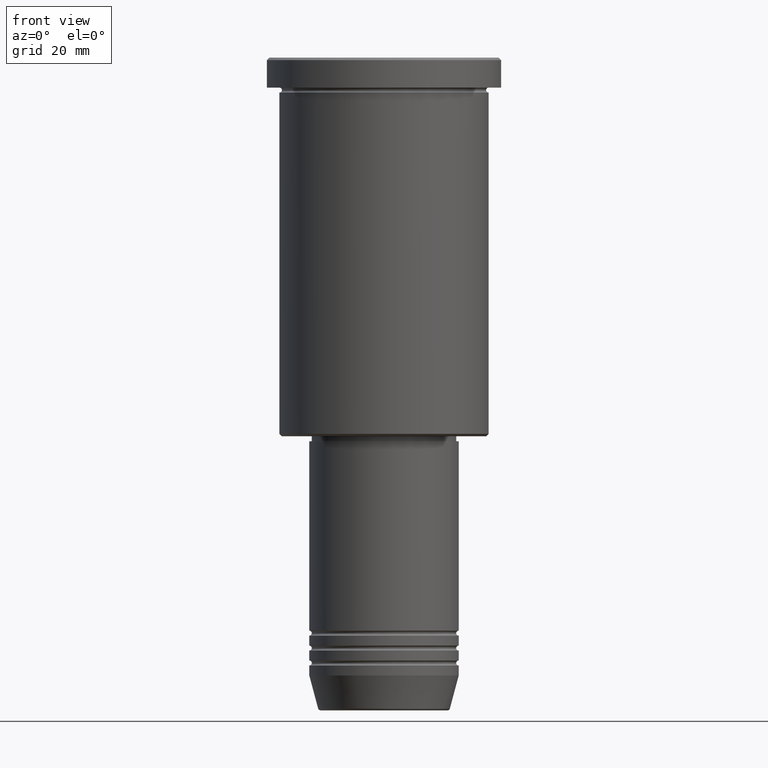
[diagram: clean part render]
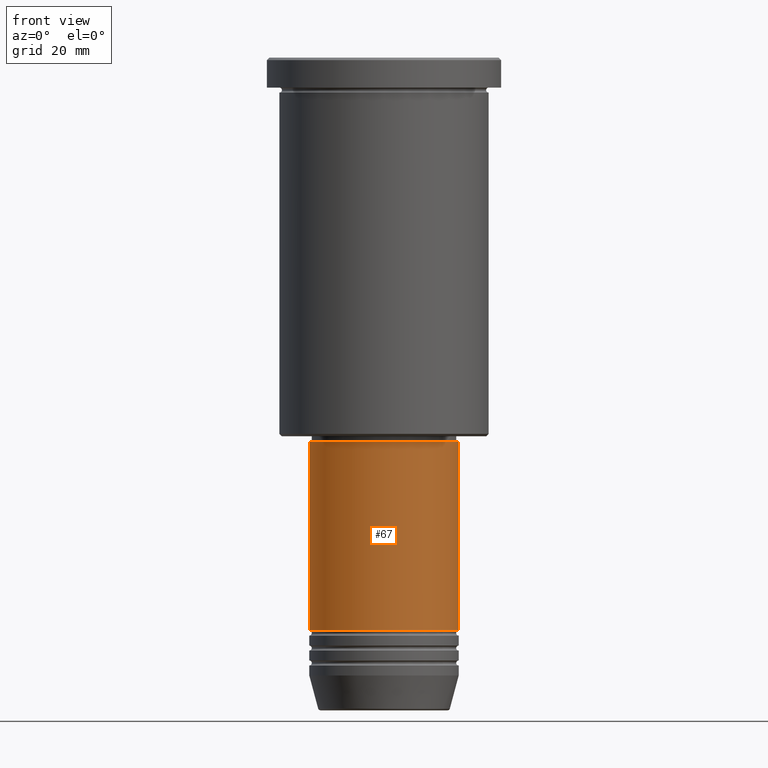
[diagram: same view with one face highlighted and labeled with its STEP entity id]
A machine part, front view. The second image highlights one B-rep face of the part: STEP entity #67.
In plain terms, the highlighted cylindrical surface (partial cylindrical patch) has radius 15 mm, axis along (-0, -0, 1).
Its self-contained STEP definition (entity closure, byte-faithful):
#29 = DIRECTION ( 'NONE',  ( -0.000000000000000000, -0.000000000000000000, 1.000000000000000000 ) ) ;
#34 = EDGE_CURVE ( 'NONE', #539, #813, #1029, .T. ) ;
#41 = EDGE_CURVE ( 'NONE', #539, #982, #852, .T. ) ;
#42 = CARTESIAN_POINT ( 'NONE',  ( 0.000000000000000000, 0.000000000000000000, 0.000000000000000000 ) ) ;
#67 = ADVANCED_FACE ( 'NONE', ( #757 ), #664, .T. ) ;
#89 = AXIS2_PLACEMENT_3D ( 'NONE', #247, #875, #968 ) ;
#117 = CARTESIAN_POINT ( 'NONE',  ( -15.00000000000000000, 1.836970198721029589E-15, -114.9999999999999574 ) ) ;
#119 = CARTESIAN_POINT ( 'NONE',  ( 0.000000000000000000, 0.000000000000000000, -114.9999999999999574 ) ) ;
#121 = VERTEX_POINT ( 'NONE', #259 ) ;
#123 = CARTESIAN_POINT ( 'NONE',  ( 15.00000000000000000, 0.000000000000000000, 0.000000000000000000 ) ) ;
#152 = ORIENTED_EDGE ( 'NONE', *, *, #515, .T. ) ;
#184 = CARTESIAN_POINT ( 'NONE',  ( 15.00000000000000000, 0.000000000000000000, -114.9999999999999574 ) ) ;
#219 = DIRECTION ( 'NONE',  ( 1.000000000000000000, 0.000000000000000000, 0.000000000000000000 ) ) ;
#229 = VECTOR ( 'NONE', #29, 1000.000000000000000 ) ;
#247 = CARTESIAN_POINT ( 'NONE',  ( 0.000000000000000000, 0.000000000000000000, -76.99999999999998579 ) ) ;
#248 = CARTESIAN_POINT ( 'NONE',  ( -15.00000000000000000, 1.836970198721029589E-15, -76.99999999999998579 ) ) ;
#259 = CARTESIAN_POINT ( 'NONE',  ( 15.00000000000000000, 0.000000000000000000, -76.99999999999998579 ) ) ;
#268 = ORIENTED_EDGE ( 'NONE', *, *, #41, .T. ) ;
#328 = CIRCLE ( 'NONE', #89, 15.00000000000000000 ) ;
#333 = AXIS2_PLACEMENT_3D ( 'NONE', #42, #1035, #219 ) ;
#515 = EDGE_CURVE ( 'NONE', #982, #121, #1116, .T. ) ;
#539 = VERTEX_POINT ( 'NONE', #117 ) ;
#664 = CYLINDRICAL_SURFACE ( 'NONE', #333, 15.00000000000000000 ) ;
#704 = ORIENTED_EDGE ( 'NONE', *, *, #34, .F. ) ;
#741 = VECTOR ( 'NONE', #760, 1000.000000000000000 ) ;
#757 = FACE_OUTER_BOUND ( 'NONE', #917, .T. ) ;
#760 = DIRECTION ( 'NONE',  ( -0.000000000000000000, -0.000000000000000000, 1.000000000000000000 ) ) ;
#813 = VERTEX_POINT ( 'NONE', #248 ) ;
#837 = DIRECTION ( 'NONE',  ( -0.000000000000000000, -0.000000000000000000, 1.000000000000000000 ) ) ;
#849 = DIRECTION ( 'NONE',  ( 1.000000000000000000, 0.000000000000000000, 0.000000000000000000 ) ) ;
#852 = CIRCLE ( 'NONE', #889, 15.00000000000000000 ) ;
#875 = DIRECTION ( 'NONE',  ( -0.000000000000000000, -0.000000000000000000, 1.000000000000000000 ) ) ;
#889 = AXIS2_PLACEMENT_3D ( 'NONE', #119, #837, #849 ) ;
#917 = EDGE_LOOP ( 'NONE', ( #704, #268, #152, #1131 ) ) ;
#968 = DIRECTION ( 'NONE',  ( 1.000000000000000000, 0.000000000000000000, 0.000000000000000000 ) ) ;
#982 = VERTEX_POINT ( 'NONE', #184 ) ;
#1014 = CARTESIAN_POINT ( 'NONE',  ( -15.00000000000000000, 1.836970198721029589E-15, 0.000000000000000000 ) ) ;
#1029 = LINE ( 'NONE', #1014, #229 ) ;
#1035 = DIRECTION ( 'NONE',  ( -0.000000000000000000, -0.000000000000000000, 1.000000000000000000 ) ) ;
#1116 = LINE ( 'NONE', #123, #741 ) ;
#1131 = ORIENTED_EDGE ( 'NONE', *, *, #1183, .F. ) ;
#1183 = EDGE_CURVE ( 'NONE', #813, #121, #328, .T. ) ;